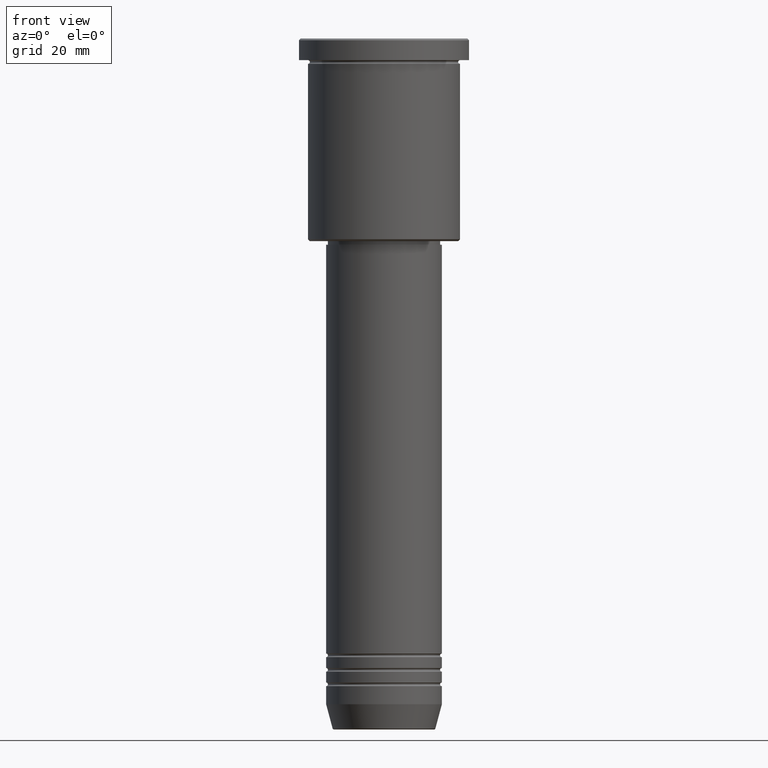
[diagram: clean part render]
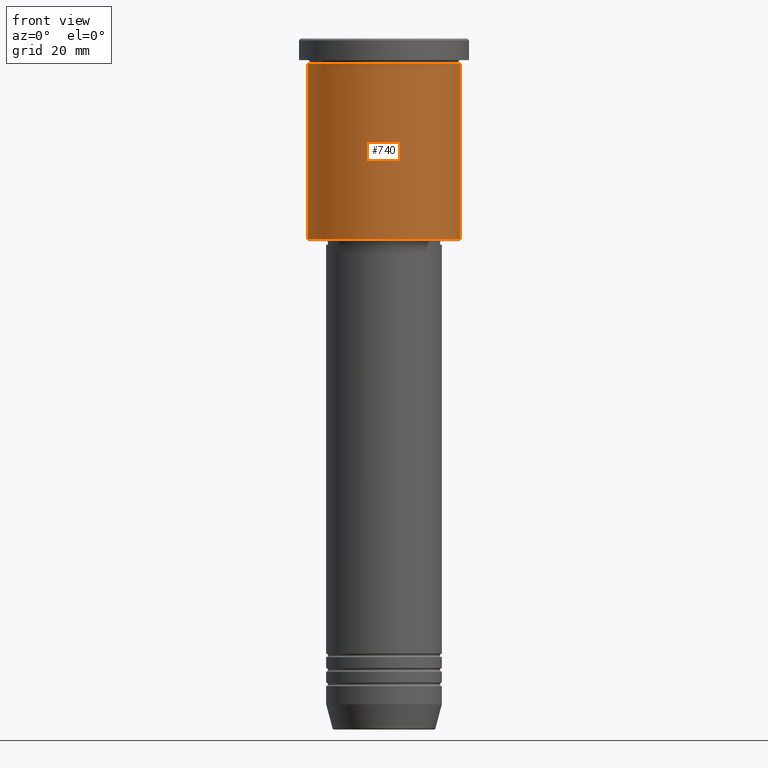
[diagram: same view with one face highlighted and labeled with its STEP entity id]
A machine part, front view. The second image highlights one B-rep face of the part: STEP entity #740.
In plain terms, the highlighted cylindrical surface (partial cylindrical patch) has radius 21 mm, axis along (-0, -0, 1).
Its self-contained STEP definition (entity closure, byte-faithful):
#12 = LINE ( 'NONE', #843, #459 ) ;
#28 = DIRECTION ( 'NONE',  ( -0.000000000000000000, -0.000000000000000000, 1.000000000000000000 ) ) ;
#39 = CARTESIAN_POINT ( 'NONE',  ( -21.00000000000000000, 2.571758278209441661E-15, -6.999999999999993783 ) ) ;
#60 = CARTESIAN_POINT ( 'NONE',  ( -21.00000000000000000, 2.571758278209441661E-15, 0.000000000000000000 ) ) ;
#97 = CIRCLE ( 'NONE', #1179, 21.00000000000000000 ) ;
#125 = ORIENTED_EDGE ( 'NONE', *, *, #653, .F. ) ;
#141 = DIRECTION ( 'NONE',  ( -1.000000000000000000, 0.000000000000000000, 0.000000000000000000 ) ) ;
#152 = CIRCLE ( 'NONE', #383, 21.00000000000000000 ) ;
#229 = DIRECTION ( 'NONE',  ( -0.000000000000000000, -0.000000000000000000, 1.000000000000000000 ) ) ;
#282 = EDGE_CURVE ( 'NONE', #455, #984, #152, .T. ) ;
#284 = ORIENTED_EDGE ( 'NONE', *, *, #282, .F. ) ;
#305 = DIRECTION ( 'NONE',  ( 1.000000000000000000, 0.000000000000000000, 0.000000000000000000 ) ) ;
#331 = EDGE_CURVE ( 'NONE', #758, #984, #12, .T. ) ;
#338 = FACE_OUTER_BOUND ( 'NONE', #781, .T. ) ;
#357 = EDGE_CURVE ( 'NONE', #617, #758, #97, .T. ) ;
#383 = AXIS2_PLACEMENT_3D ( 'NONE', #932, #28, #305 ) ;
#384 = DIRECTION ( 'NONE',  ( -0.000000000000000000, -0.000000000000000000, 1.000000000000000000 ) ) ;
#394 = CARTESIAN_POINT ( 'NONE',  ( 0.000000000000000000, 0.000000000000000000, -55.49999999999998579 ) ) ;
#407 = DIRECTION ( 'NONE',  ( -0.000000000000000000, -0.000000000000000000, 1.000000000000000000 ) ) ;
#410 = DIRECTION ( 'NONE',  ( 1.000000000000000000, 0.000000000000000000, 0.000000000000000000 ) ) ;
#422 = CARTESIAN_POINT ( 'NONE',  ( 21.00000000000000000, 0.000000000000000000, -6.999999999999993783 ) ) ;
#455 = VERTEX_POINT ( 'NONE', #39 ) ;
#459 = VECTOR ( 'NONE', #384, 1000.000000000000000 ) ;
#526 = ORIENTED_EDGE ( 'NONE', *, *, #331, .T. ) ;
#537 = CARTESIAN_POINT ( 'NONE',  ( -21.00000000000000000, 2.571758278209441661E-15, -55.49999999999998579 ) ) ;
#540 = ORIENTED_EDGE ( 'NONE', *, *, #357, .T. ) ;
#604 = CYLINDRICAL_SURFACE ( 'NONE', #969, 21.00000000000000000 ) ;
#617 = VERTEX_POINT ( 'NONE', #537 ) ;
#653 = EDGE_CURVE ( 'NONE', #617, #455, #809, .T. ) ;
#697 = CARTESIAN_POINT ( 'NONE',  ( 0.000000000000000000, 0.000000000000000000, 0.000000000000000000 ) ) ;
#740 = ADVANCED_FACE ( 'NONE', ( #338 ), #604, .T. ) ;
#758 = VERTEX_POINT ( 'NONE', #1061 ) ;
#781 = EDGE_LOOP ( 'NONE', ( #125, #540, #526, #284 ) ) ;
#809 = LINE ( 'NONE', #60, #917 ) ;
#843 = CARTESIAN_POINT ( 'NONE',  ( 21.00000000000000000, 0.000000000000000000, 0.000000000000000000 ) ) ;
#917 = VECTOR ( 'NONE', #963, 1000.000000000000000 ) ;
#932 = CARTESIAN_POINT ( 'NONE',  ( 0.000000000000000000, 0.000000000000000000, -6.999999999999993783 ) ) ;
#963 = DIRECTION ( 'NONE',  ( -0.000000000000000000, -0.000000000000000000, 1.000000000000000000 ) ) ;
#969 = AXIS2_PLACEMENT_3D ( 'NONE', #697, #407, #410 ) ;
#984 = VERTEX_POINT ( 'NONE', #422 ) ;
#1061 = CARTESIAN_POINT ( 'NONE',  ( 21.00000000000000000, 0.000000000000000000, -55.49999999999998579 ) ) ;
#1179 = AXIS2_PLACEMENT_3D ( 'NONE', #394, #229, #141 ) ;